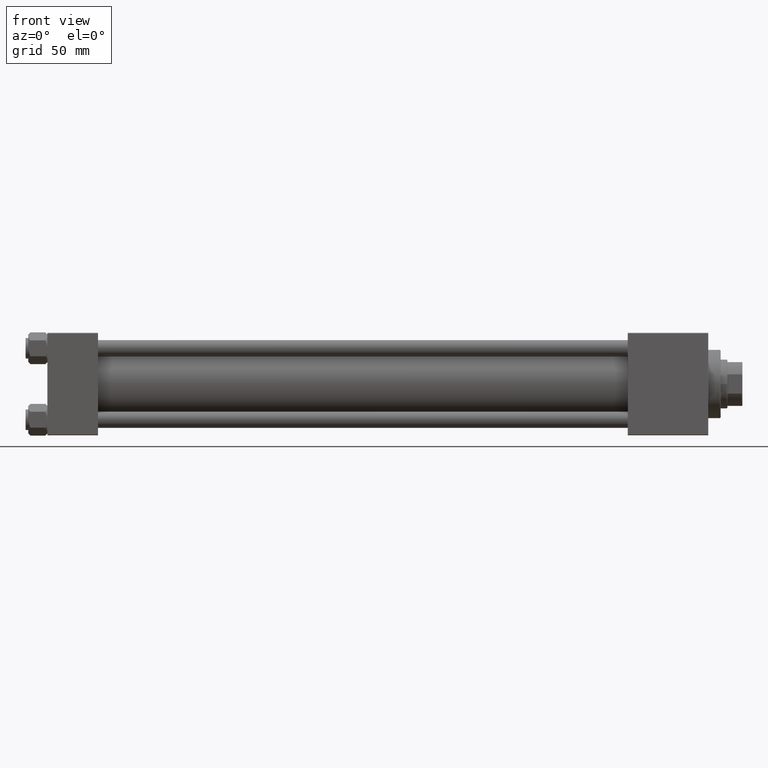
[diagram: clean part render]
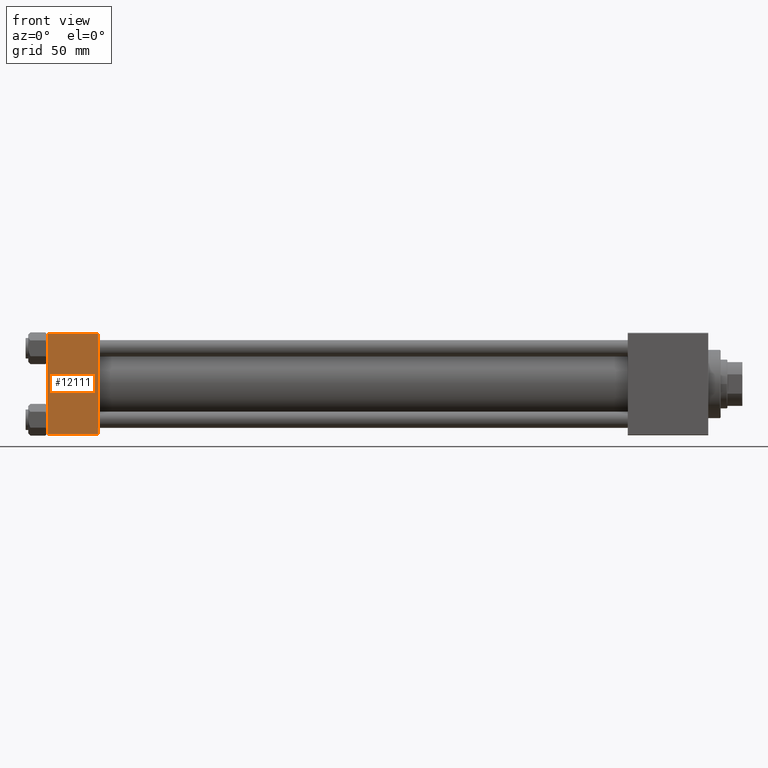
[diagram: same view with one face highlighted and labeled with its STEP entity id]
A machine part, front view. The second image highlights one B-rep face of the part: STEP entity #12111.
In plain terms, the highlighted planar face has unit normal (0, 1, 0).
Its self-contained STEP definition (entity closure, byte-faithful):
#464 = CARTESIAN_POINT ( 'NONE',  ( 37.00000000000000000, -37.50000000000000000, -37.00000000000003553 ) ) ;
#2794 = ORIENTED_EDGE ( 'NONE', *, *, #40076, .T. ) ;
#6292 = DIRECTION ( 'NONE',  ( 0.000000000000000000, -9.251858538542971581E-17, 1.000000000000000000 ) ) ;
#6331 = CARTESIAN_POINT ( 'NONE',  ( 0.000000000000000000, -37.50000000000000000, -37.00000000000003553 ) ) ;
#6379 = LINE ( 'NONE', #37347, #14908 ) ;
#6630 = DIRECTION ( 'NONE',  ( 0.000000000000000000, 9.251858538542971581E-17, -1.000000000000000000 ) ) ;
#9854 = CARTESIAN_POINT ( 'NONE',  ( 37.00000000000000000, -37.50000000000000711, 37.49999999999999289 ) ) ;
#12111 = ADVANCED_FACE ( 'NONE', ( #25608 ), #29145, .F. ) ;
#13923 = CARTESIAN_POINT ( 'NONE',  ( 37.00000000000000000, -37.50000000000000000, -37.00000000000003553 ) ) ;
#14908 = VECTOR ( 'NONE', #45218, 1000.000000000000000 ) ;
#15302 = CARTESIAN_POINT ( 'NONE',  ( 37.00000000000000000, -37.50000000000000711, 36.99999999999999289 ) ) ;
#16041 = CARTESIAN_POINT ( 'NONE',  ( 0.000000000000000000, -37.50000000000000711, 36.99999999999999289 ) ) ;
#17514 = VECTOR ( 'NONE', #35952, 1000.000000000000000 ) ;
#17867 = VERTEX_POINT ( 'NONE', #6331 ) ;
#20457 = LINE ( 'NONE', #47620, #17514 ) ;
#20687 = EDGE_CURVE ( 'NONE', #39791, #22008, #20457, .T. ) ;
#22008 = VERTEX_POINT ( 'NONE', #16041 ) ;
#23086 = EDGE_LOOP ( 'NONE', ( #2794, #38478, #46028, #46482 ) ) ;
#23820 = AXIS2_PLACEMENT_3D ( 'NONE', #9854, #41078, #6292 ) ;
#25608 = FACE_OUTER_BOUND ( 'NONE', #23086, .T. ) ;
#25870 = LINE ( 'NONE', #13923, #43658 ) ;
#29145 = PLANE ( 'NONE',  #23820 ) ;
#30494 = EDGE_CURVE ( 'NONE', #17867, #49360, #25870, .T. ) ;
#32382 = EDGE_CURVE ( 'NONE', #39791, #49360, #38110, .T. ) ;
#35704 = VECTOR ( 'NONE', #6630, 1000.000000000000000 ) ;
#35952 = DIRECTION ( 'NONE',  ( -1.000000000000000000, 0.000000000000000000, 0.000000000000000000 ) ) ;
#37347 = CARTESIAN_POINT ( 'NONE',  ( 0.000000000000000000, -37.50000000000000711, 37.49999999999999289 ) ) ;
#38110 = LINE ( 'NONE', #45723, #35704 ) ;
#38478 = ORIENTED_EDGE ( 'NONE', *, *, #30494, .T. ) ;
#39791 = VERTEX_POINT ( 'NONE', #15302 ) ;
#40076 = EDGE_CURVE ( 'NONE', #22008, #17867, #6379, .T. ) ;
#41078 = DIRECTION ( 'NONE',  ( -0.000000000000000000, 1.000000000000000000, 9.251858538542971581E-17 ) ) ;
#43658 = VECTOR ( 'NONE', #44902, 1000.000000000000000 ) ;
#44902 = DIRECTION ( 'NONE',  ( 1.000000000000000000, 0.000000000000000000, 0.000000000000000000 ) ) ;
#45218 = DIRECTION ( 'NONE',  ( 0.000000000000000000, 9.251858538542971581E-17, -1.000000000000000000 ) ) ;
#45723 = CARTESIAN_POINT ( 'NONE',  ( 37.00000000000000000, -37.50000000000000711, 37.49999999999999289 ) ) ;
#46028 = ORIENTED_EDGE ( 'NONE', *, *, #32382, .F. ) ;
#46482 = ORIENTED_EDGE ( 'NONE', *, *, #20687, .T. ) ;
#47620 = CARTESIAN_POINT ( 'NONE',  ( 37.00000000000000000, -37.50000000000000711, 36.99999999999999289 ) ) ;
#49360 = VERTEX_POINT ( 'NONE', #464 ) ;